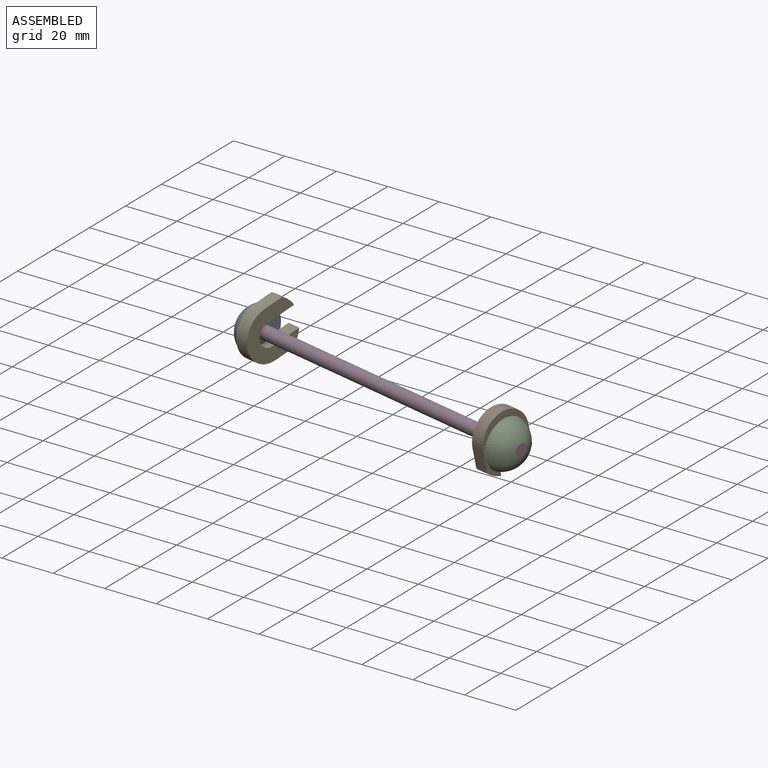
[diagram: assembled view]
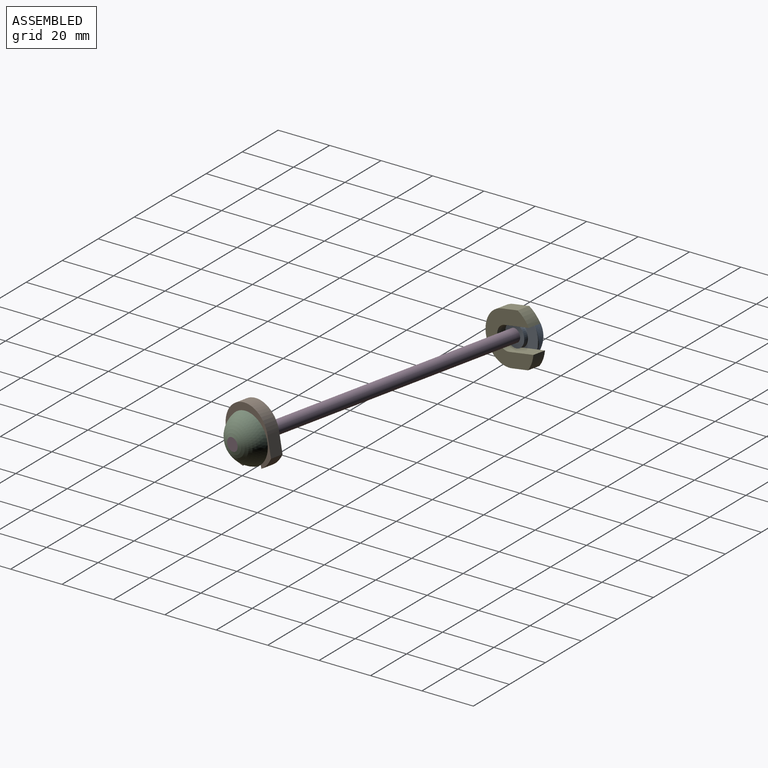
[diagram: assembled view, second angle]
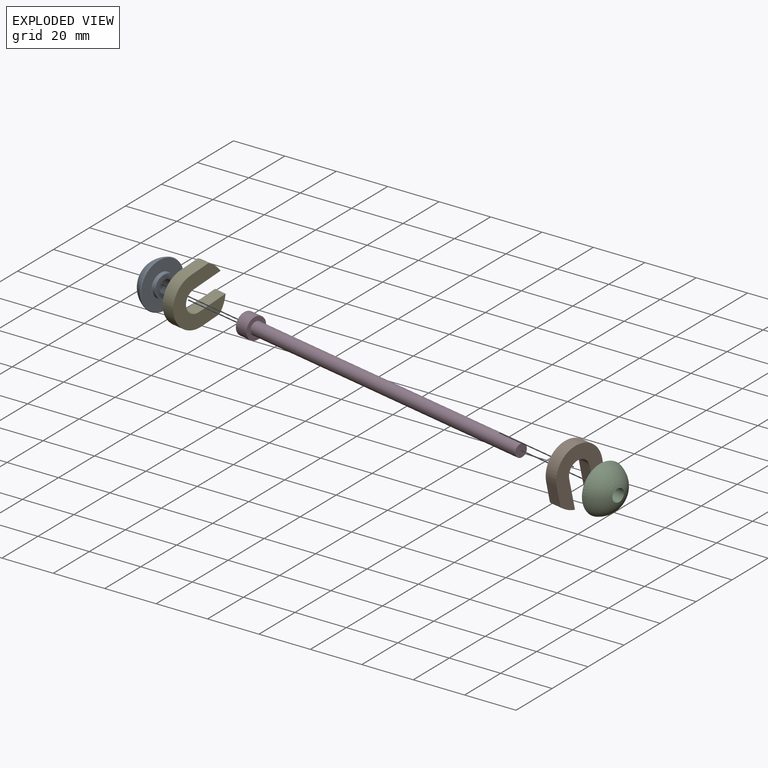
[diagram: exploded view]
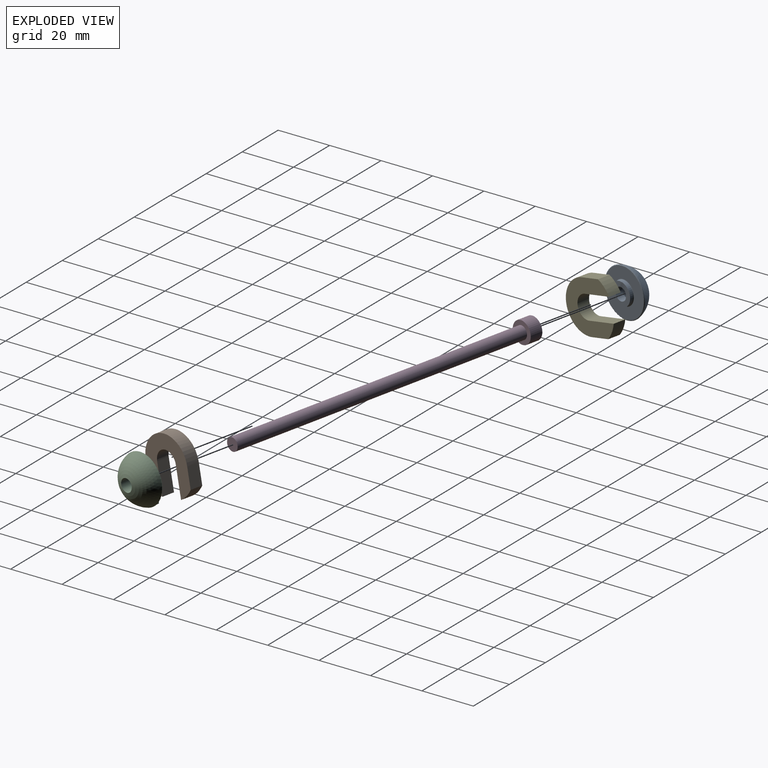
[diagram: exploded view, second angle]
ASSEMBLY  parts=5 mates=8
PART A: 10 faces, bbox 7.6x20.4x20.4 mm
  f0: cylinder r=4.45mm len=8.9mm, axis (-1,0,0), area 35mm2, adj f6,f7
  f1: plane 18.34x18.34mm, normal (1,0,0), area 194.8mm2, adj f7,f8
  f2: sphere r=9.82mm, area 356.7mm2, adj f8,f9
  f3: cylinder r=4.4mm len=8.8mm, axis (-1,0,0), area 121.2mm2, adj f4,f9
  f4: plane 8.8x8.8mm, normal (-1,0,0), area 41.2mm2, adj f3,f5
  f5: cylinder r=2.5mm len=5mm, axis (-1,0,0), area 47.1mm2, adj f4,f6
  f6: plane 8.9x8.9mm, normal (1,0,0), area 42.6mm2, adj f0,f5
  f7: torus R=4.7mm, axis (-1,0,0), area 11.2mm2, adj f0,f1
  f8: torus R=9.17mm, axis (-1,0,0), area 27.3mm2, adj f1,f2
  f9: torus R=4.65mm, axis (1,0,0), area 14.8mm2, adj f2,f3
PART B: 10 faces, bbox 22.8x5.1x21.7 mm
  f0: cylinder r=10mm len=19.7mm, axis (0,1,0), area 157.1mm2, adj f1,f2,f8,f9
  f1: plane 22.63x21.62mm, normal (0,-1,0), area 237.9mm2, adj f0,f2,f3,f4,f5,f6,f7,f8
  f2: plane 7.6x5mm, normal (-0.24,0,0.97), area 39.1mm2, adj f0,f1,f3,f9
  f3: cylinder r=12.7mm len=5.26mm, axis (0,1,0), area 34.6mm2, adj f1,f2,f4,f9
  f4: plane 11.52x5mm, normal (0.24,0,-0.97), area 59.4mm2, adj f1,f3,f5,f9
  f5: cylinder r=4.5mm len=8.87mm, axis (0,1,0), area 70.7mm2, adj f1,f4,f6,f9
  f6: plane 11.52x5mm, normal (-0.24,0,0.97), area 59.4mm2, adj f1,f5,f7,f9
  f7: cylinder r=12.7mm len=6.32mm, axis (0,1,0), area 34.6mm2, adj f1,f6,f8,f9
  f8: plane 7.6x5mm, normal (0.24,0,-0.97), area 39.1mm2, adj f0,f1,f7,f9
  f9: plane 22.77x21.75mm, normal (0,1,0), area 238mm2, adj f0,f2,f3,f4,f5,f6,f7,f8
PART C: 9 faces, bbox 8.5x20.4x20.4 mm
  f0: cylinder r=4.45mm len=8.9mm, axis (1,0,0), area 21mm2, adj f2,f4,f7,f8
  f1: cylinder r=9.17mm len=8.9mm, axis (-1,0,0), area 13.9mm2, adj f2,f6,f7,f8
  f2: plane 8.02x1.5mm, normal (0,1,0), area 12mm2, adj f0,f1,f4,f8
  f3: cylinder r=2.5mm len=8.52mm, axis (1,0,0), area 133.8mm2, adj f5,f8
  f4: plane 18.34x17.19mm, normal (1,0,0), area 154.8mm2, adj f0,f2,f6,f7
  f5: sphere r=9.82mm, area 413.1mm2, adj f3,f6
  f6: torus R=9.17mm, axis (1,0,0), area 27.3mm2, adj f1,f4,f5
  f7: plane 8.02x1.5mm, normal (0,-1,0), area 12mm2, adj f0,f1,f4,f8
  f8: plane 13.62x8.9mm, normal (1,0,0), area 89.8mm2, adj f0,f1,f2,f3,f7
PART D: 12 faces, bbox 130x8.5x8.5 mm
  f0: plane 8.5x8.5mm, normal (-1,0,0), area 42.9mm2, adj f4,f5,f6,f7,f8,f9,f10
  f1: plane 5x5mm, normal (1,0,0), area 19.6mm2, adj f2
  f2: cylinder r=2.5mm len=125mm, axis (1,0,0), area 1963.5mm2, adj f1,f3
  f3: plane 8.5x8.5mm, normal (1,0,0), area 37.1mm2, adj f2,f4
  f4: cylinder r=4.25mm len=8.5mm, axis (1,0,0), area 133.5mm2, adj f0,f3
  f5: plane 2.31x2mm, normal (0,0,-1), area 4.6mm2, adj f0,f6,f10,f11
  f6: plane 2x2mm, normal (0,-0.87,-0.5), area 4.6mm2, adj f0,f5,f7,f11
  f7: plane 2x2mm, normal (0,-0.87,0.5), area 4.6mm2, adj f0,f6,f8,f11
  f8: plane 2.31x2mm, normal (0,0,1), area 4.6mm2, adj f0,f7,f9,f11
  f9: plane 2x2mm, normal (0,0.87,0.5), area 4.6mm2, adj f0,f8,f10,f11
  f10: plane 2x2mm, normal (0,0.87,-0.5), area 4.6mm2, adj f0,f5,f9,f11
  f11: plane 4.62x4mm, normal (-1,0,0), area 13.9mm2, adj f5,f6,f7,f8,f9,f10
PART E: same geometry as B
PLACE A rot(axis=(0.99,-0.11,-0.11),90.7deg) t=(-23.3,47.74,-24.56)mm
PLACE B rot(axis=(-0.54,0.67,0.52),114.3deg) t=(142.66,-8.18,748.71)mm
PLACE C rot(axis=(-0.01,-0.11,0.99),167.5deg) t=(97.57,20.86,-24.56)mm
PLACE D rot(axis=(0,0,-1),12.5deg) t=(-22.48,47.55,-24.56)mm fixed
PLACE E rot(axis=(0,0,1),77.5deg) t=(-129.62,-717.55,-67.79)mm
MATE planar B.f1 <-> C.f6  axis (0.98,-0.22,0) through (95.83,11.55,-28.33)mm
MATE planar D.f2 <-> C.f3  axis (0.98,-0.22,0) through (104.42,19.33,-24.56)mm
MATE planar C.f7 <-> B.f4  axis (0.21,0.95,0.21) through (97.96,26.09,-27.54)mm
MATE fastened D.f2 <-> A.f0  axis (0.98,-0.22,0) through (-17.6,46.47,-24.56)mm
MATE planar E.f9 <-> A.f8  axis (-0.98,0.22,0) through (-18.24,36.67,-26.97)mm
MATE cylindrical E.f0 <-> D.f2  axis (-0.98,0.22,0) through (-11.26,45.06,-24.56)mm
MATE fastened A.f0 <-> D.f2  axis (-0.98,0.22,0) through (-17.6,46.47,-24.56)mm
MATE cylindrical D.f2 <-> C.f3  axis (0.98,-0.22,0) through (43.41,32.9,-24.56)mm
